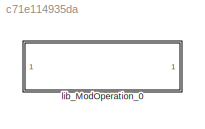
MODEL slx_c71e114935da
KIND library
CONFIG AbsTol = auto
CONFIG EnableMultiTasking = off
CONFIG FixedStep = auto
CONFIG MaxStep = auto
CONFIG MinStep = auto
CONFIG RelTol = 1e-3
CONFIG SampleTimeConstraint = Unconstrained
CONFIG SolverName = VariableStepAuto
CONFIG StartTime = 0.0
CONFIG StopTime = 10.0
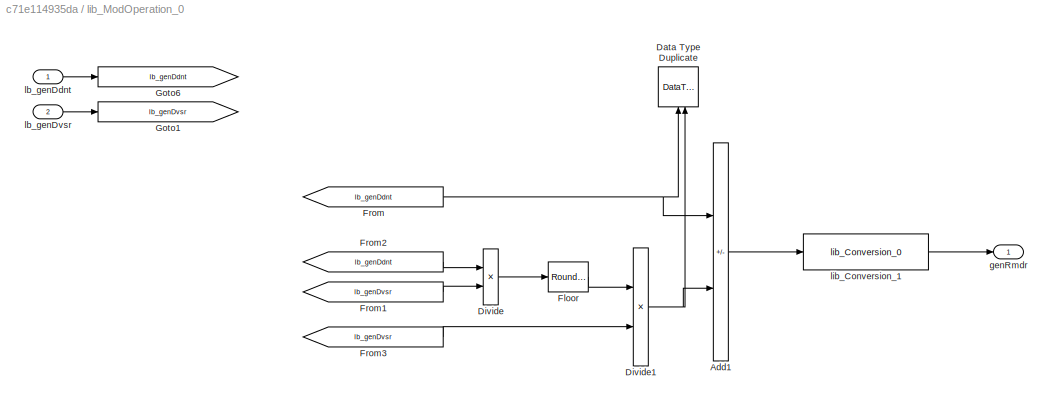
BLOCK [SubSystem] lib_ModOperation_0
BLOCK [Sum] lib_ModOperation_0/Add1
  IconShape = rectangular
  Inputs = +-
  OutDataTypeStr = Inherit: Inherit via back propagation
BLOCK [DataTypeDuplicate] lib_ModOperation_0/Data Type Duplicate
  NameLocation = right
BLOCK [Product] lib_ModOperation_0/Divide
  Inputs = */
  OutDataTypeStr = single
BLOCK [Product] lib_ModOperation_0/Divide1
  Inputs = **
  OutDataTypeStr = Inherit: Inherit via back propagation
BLOCK [Rounding] lib_ModOperation_0/Floor
BLOCK [From] lib_ModOperation_0/From
  GotoTag = lb_genDdnt
BLOCK [From] lib_ModOperation_0/From1
  GotoTag = lb_genDvsr
BLOCK [From] lib_ModOperation_0/From2
  GotoTag = lb_genDdnt
BLOCK [From] lib_ModOperation_0/From3
  GotoTag = lb_genDvsr
BLOCK [Goto] lib_ModOperation_0/Goto1
  GotoTag = lb_genDvsr
BLOCK [Goto] lib_ModOperation_0/Goto6
  GotoTag = lb_genDdnt
BLOCK [Outport] lib_ModOperation_0/genRmdr
BLOCK [Inport] lib_ModOperation_0/lb_genDdnt
BLOCK [Inport] lib_ModOperation_0/lb_genDvsr
  Port = 2
BLOCK [Reference] lib_ModOperation_0/lib_Conversion_1  REF=lib_conversion/lib_Conversion_0  (lib defined in slx_7f5c0202220d)
  SourceBlock = lib_conversion/lib_Conversion_0
LINE lib_ModOperation_0/Add1:1 -> lib_ModOperation_0/lib_Conversion_1:1
NET lib_ModOperation_0/Divide1:1 -> lib_ModOperation_0/Add1:2, lib_ModOperation_0/Data Type Duplicate:2
LINE lib_ModOperation_0/Divide:1 -> lib_ModOperation_0/Floor:1
LINE lib_ModOperation_0/Floor:1 -> lib_ModOperation_0/Divide1:1
LINE lib_ModOperation_0/From1:1 -> lib_ModOperation_0/Divide:2
LINE lib_ModOperation_0/From2:1 -> lib_ModOperation_0/Divide:1
LINE lib_ModOperation_0/From3:1 -> lib_ModOperation_0/Divide1:2
NET lib_ModOperation_0/From:1 -> lib_ModOperation_0/Add1:1, lib_ModOperation_0/Data Type Duplicate:1
LINE lib_ModOperation_0/lb_genDdnt:1 -> lib_ModOperation_0/Goto6:1
LINE lib_ModOperation_0/lb_genDvsr:1 -> lib_ModOperation_0/Goto1:1
LINE lib_ModOperation_0/lib_Conversion_1:1 -> lib_ModOperation_0/genRmdr:1
note: NET lines group one-source signal fan-out (src -> all destinations, sorted); 1:1 wires keep LINE
